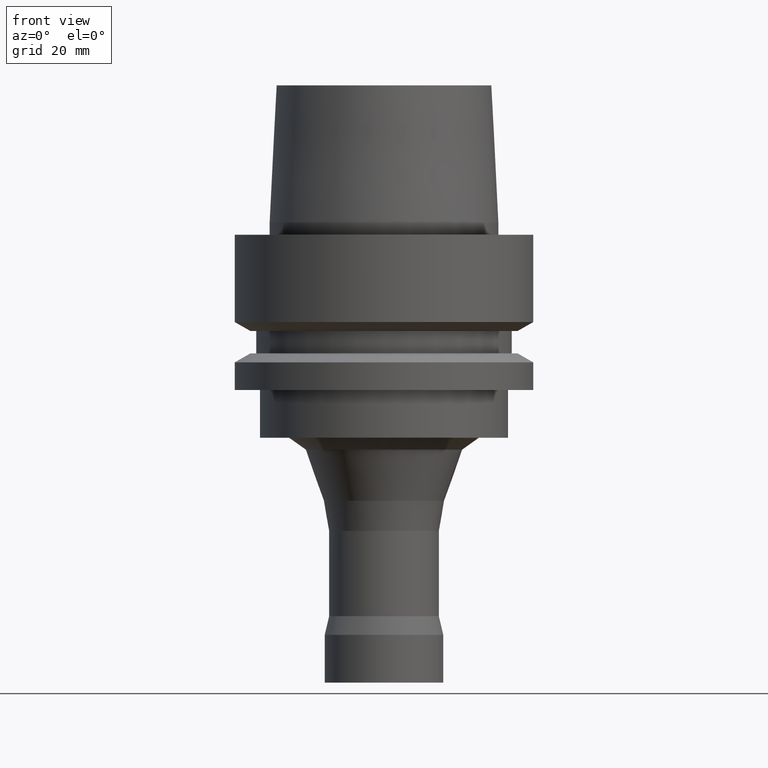
[diagram: clean part render]
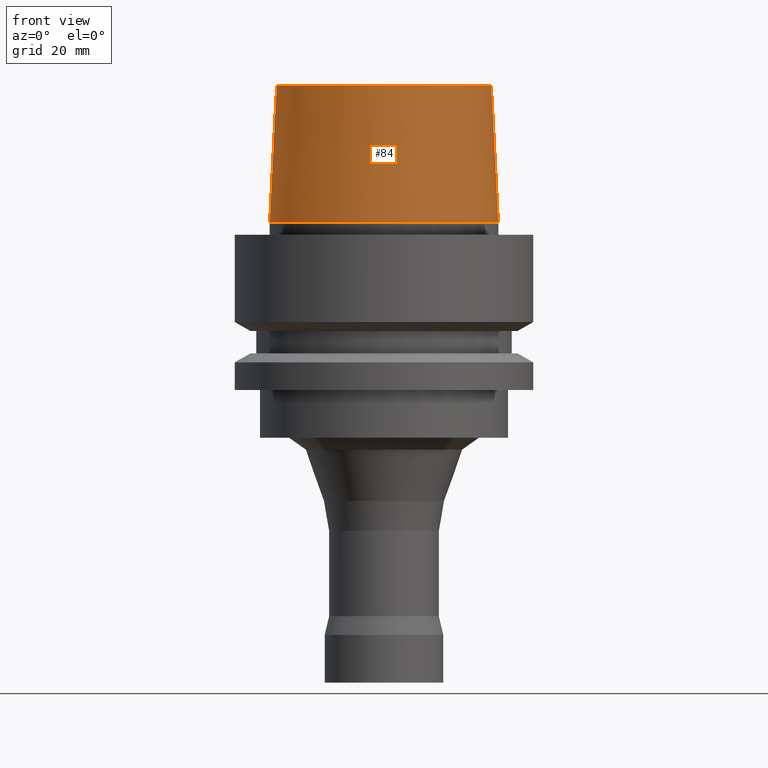
[diagram: same view with one face highlighted and labeled with its STEP entity id]
A machine part, front view. The second image highlights one B-rep face of the part: STEP entity #84.
In plain terms, the highlighted conical surface has half-angle 2.862 deg.
Its self-contained STEP definition (entity closure, byte-faithful):
#84=ADVANCED_FACE('',(#122,#123),#124,.T.);
#122=FACE_BOUND('',#183,.T.);
#123=FACE_BOUND('',#184,.T.);
#124=CONICAL_SURFACE('',#185,18.5750000005215,0.049958395676703);
#183=EDGE_LOOP('',(#262));
#184=EDGE_LOOP('',(#263));
#185=AXIS2_PLACEMENT_3D('',#264,#265,#266);
#262=ORIENTED_EDGE('',*,*,#331,.F.);
#263=ORIENTED_EDGE('',*,*,#330,.T.);
#264=CARTESIAN_POINT('',(-8.26636589424463E-016,-1.65327317884893E-015,13.5));
#265=DIRECTION('',(6.12323399573677E-017,1.22464679914735E-016,-1.0));
#266=DIRECTION('',(-1.23259516440783E-032,1.0,1.22464679914735E-016));
#330=EDGE_CURVE('',#358,#358,#359,.T.);
#331=EDGE_CURVE('',#360,#360,#361,.T.);
#358=VERTEX_POINT('',#398);
#359=CIRCLE('',#399,18.0000000010431);
#360=VERTEX_POINT('',#400);
#361=CIRCLE('',#401,19.15);
#398=CARTESIAN_POINT('',(-1.53080849893419E-015,18.0000000010431,25.0));
#399=AXIS2_PLACEMENT_3D('',#446,#447,#448);
#400=CARTESIAN_POINT('',(-1.22464679914736E-016,19.15,2.0));
#401=AXIS2_PLACEMENT_3D('',#449,#450,#451);
#446=CARTESIAN_POINT('',(-1.53080849893419E-015,-3.06161699786838E-015,25.0));
#447=DIRECTION('',(6.12323399573677E-017,1.22464679914735E-016,-1.0));
#448=DIRECTION('',(-1.23259516440783E-032,1.0,1.22464679914735E-016));
#449=CARTESIAN_POINT('',(-1.22464679914735E-016,-2.44929359829471E-016,2.0));
#450=DIRECTION('',(6.12323399573677E-017,1.22464679914735E-016,-1.0));
#451=DIRECTION('',(-1.23259516440783E-032,1.0,1.22464679914735E-016));